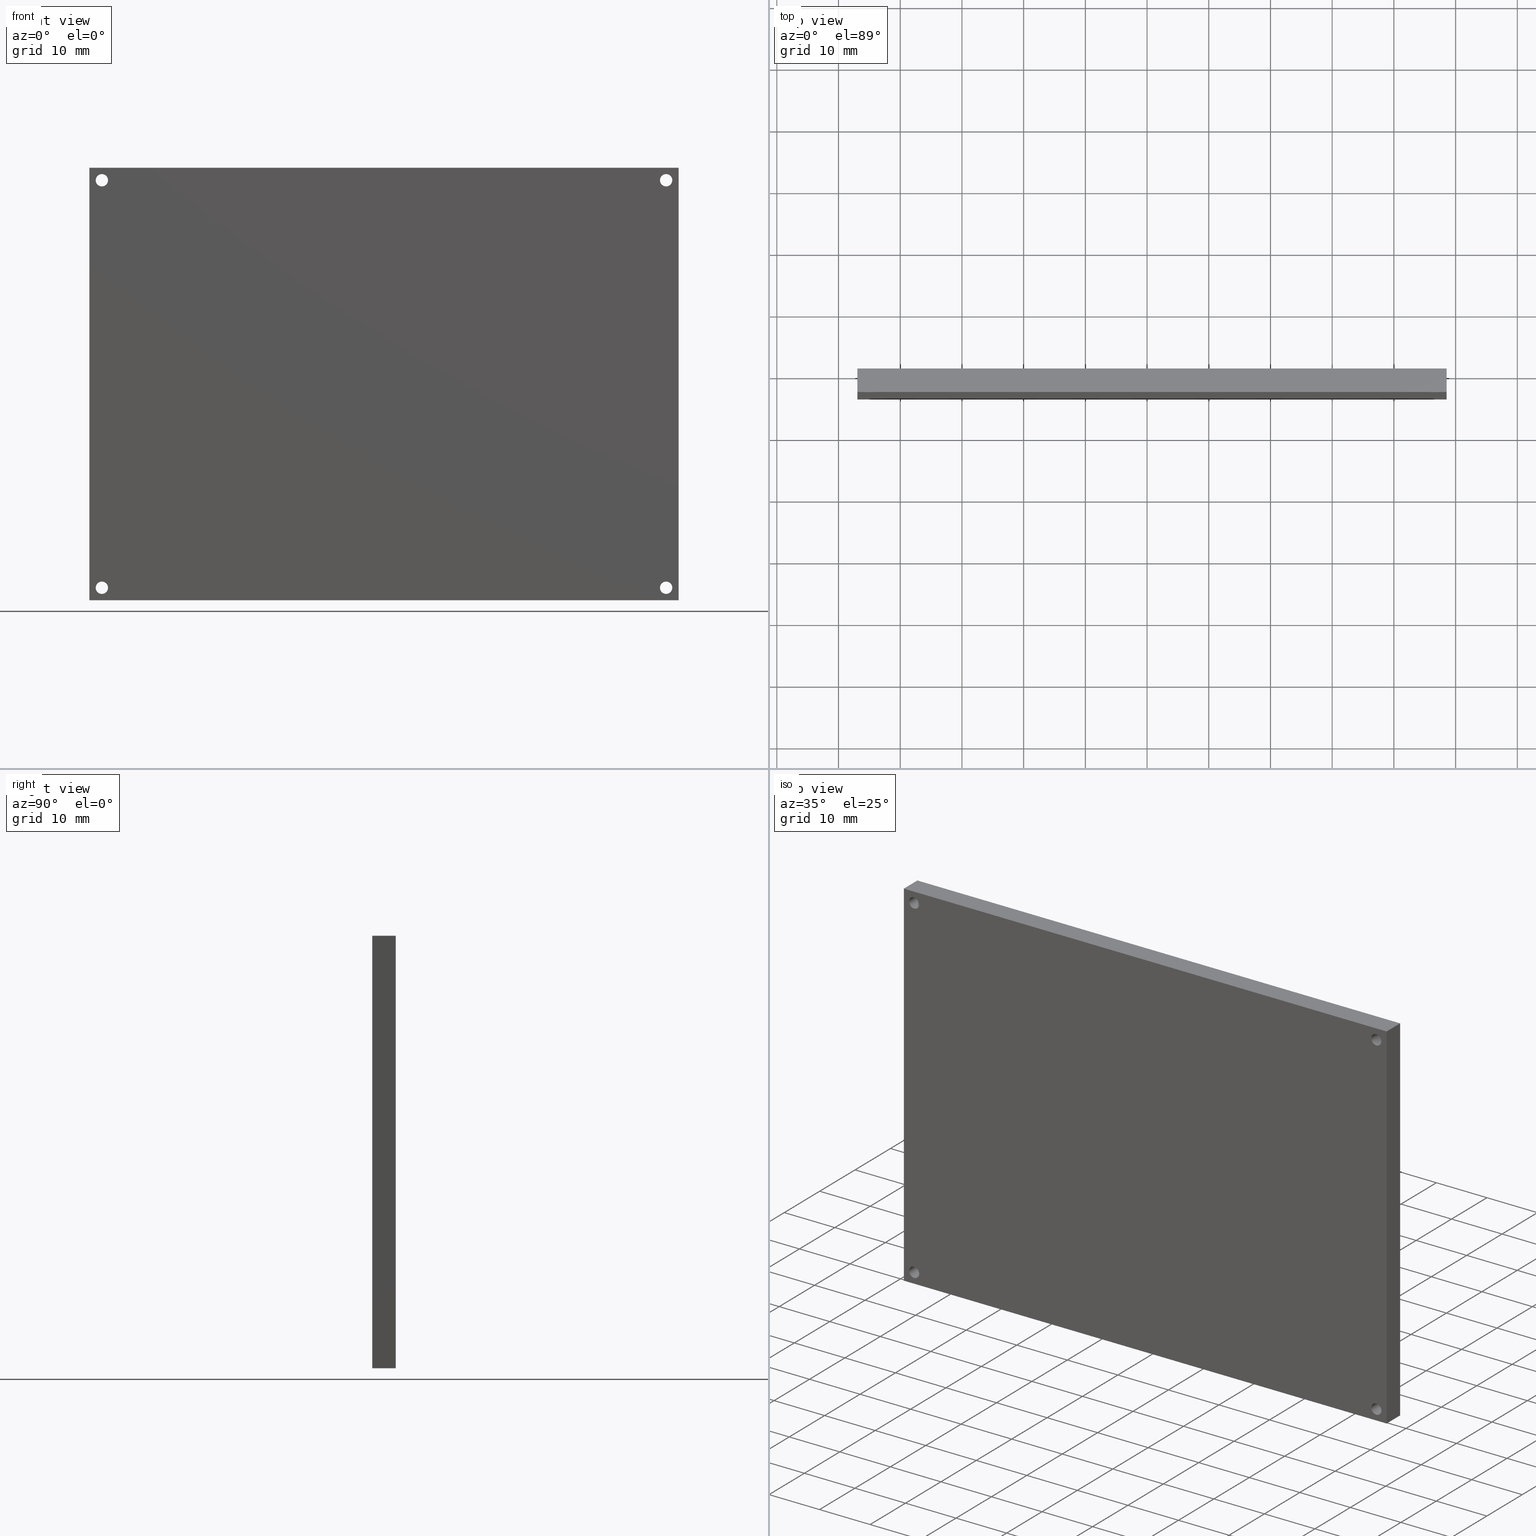
[diagram: canonical four-view strip — front | top / right | iso, engineering-drawing reading convention]
A machine part, canonical four-view strip (front | top / right | iso — engineering-drawing reading convention). The complete STEP part file that produces these views, byte-faithful:
ISO-10303-21;
HEADER;
/* Generated by software containing ST-Developer
 * from STEP Tools, Inc. (www.steptools.com) 
 */

FILE_DESCRIPTION(
/* description */ (''),
/* implementation_level */ '2;1');

FILE_NAME(
/* name */ 'Maze Cover.step',
/* time_stamp */ '2024-03-25T15:01:52-04:00',
/* author */ (''),
/* organization */ (''),
/* preprocessor_version */ 'ST-DEVELOPER v20',
/* originating_system */ 'Autodesk Translation Framework v12.20.1.177',

/* authorisation */ '');

FILE_SCHEMA (('AUTOMOTIVE_DESIGN { 1 0 10303 214 3 1 1 }'));
ENDSEC;

DATA;
#10=MECHANICAL_DESIGN_GEOMETRIC_PRESENTATION_REPRESENTATION('',(#13),#339);
#11=SHAPE_REPRESENTATION_RELATIONSHIP('SRR','None',#349,#12);
#12=ADVANCED_BREP_SHAPE_REPRESENTATION('',(#14),#338);
#13=STYLED_ITEM('',(#359),#14);
#14=MANIFOLD_SOLID_BREP('Body2',#199);
#15=FACE_BOUND('',#48,.T.);
#16=FACE_BOUND('',#49,.T.);
#17=FACE_BOUND('',#50,.T.);
#18=FACE_BOUND('',#51,.T.);
#19=FACE_BOUND('',#53,.T.);
#20=FACE_BOUND('',#54,.T.);
#21=FACE_BOUND('',#55,.T.);
#22=FACE_BOUND('',#56,.T.);
#23=PLANE('',#225);
#24=PLANE('',#226);
#25=PLANE('',#227);
#26=PLANE('',#228);
#27=PLANE('',#229);
#28=PLANE('',#230);
#29=FACE_OUTER_BOUND('',#39,.T.);
#30=FACE_OUTER_BOUND('',#40,.T.);
#31=FACE_OUTER_BOUND('',#41,.T.);
#32=FACE_OUTER_BOUND('',#42,.T.);
#33=FACE_OUTER_BOUND('',#43,.T.);
#34=FACE_OUTER_BOUND('',#44,.T.);
#35=FACE_OUTER_BOUND('',#45,.T.);
#36=FACE_OUTER_BOUND('',#46,.T.);
#37=FACE_OUTER_BOUND('',#47,.T.);
#38=FACE_OUTER_BOUND('',#52,.T.);
#39=EDGE_LOOP('',(#137,#138,#139,#140));
#40=EDGE_LOOP('',(#141,#142,#143,#144));
#41=EDGE_LOOP('',(#145,#146,#147,#148));
#42=EDGE_LOOP('',(#149,#150,#151,#152));
#43=EDGE_LOOP('',(#153,#154,#155,#156));
#44=EDGE_LOOP('',(#157,#158,#159,#160));
#45=EDGE_LOOP('',(#161,#162,#163,#164));
#46=EDGE_LOOP('',(#165,#166,#167,#168));
#47=EDGE_LOOP('',(#169,#170,#171,#172));
#48=EDGE_LOOP('',(#173));
#49=EDGE_LOOP('',(#174));
#50=EDGE_LOOP('',(#175));
#51=EDGE_LOOP('',(#176));
#52=EDGE_LOOP('',(#177,#178,#179,#180));
#53=EDGE_LOOP('',(#181));
#54=EDGE_LOOP('',(#182));
#55=EDGE_LOOP('',(#183));
#56=EDGE_LOOP('',(#184));
#57=LINE('',#290,#73);
#58=LINE('',#296,#74);
#59=LINE('',#302,#75);
#60=LINE('',#308,#76);
#61=LINE('',#313,#77);
#62=LINE('',#315,#78);
#63=LINE('',#317,#79);
#64=LINE('',#318,#80);
#65=LINE('',#321,#81);
#66=LINE('',#323,#82);
#67=LINE('',#324,#83);
#68=LINE('',#327,#84);
#69=LINE('',#329,#85);
#70=LINE('',#330,#86);
#71=LINE('',#332,#87);
#72=LINE('',#333,#88);
#73=VECTOR('',#237,0.0393700787401575);
#74=VECTOR('',#244,0.0393700787401573);
#75=VECTOR('',#251,0.0393700787401573);
#76=VECTOR('',#258,0.0393700787401575);
#77=VECTOR('',#263,0.393700787401575);
#78=VECTOR('',#264,0.393700787401575);
#79=VECTOR('',#265,0.393700787401575);
#80=VECTOR('',#266,0.393700787401575);
#81=VECTOR('',#269,0.393700787401575);
#82=VECTOR('',#270,0.393700787401575);
#83=VECTOR('',#271,0.393700787401575);
#84=VECTOR('',#274,0.393700787401575);
#85=VECTOR('',#275,0.393700787401575);
#86=VECTOR('',#276,0.393700787401575);
#87=VECTOR('',#279,0.393700787401575);
#88=VECTOR('',#280,0.393700787401575);
#89=CIRCLE('',#214,0.0393700787401575);
#90=CIRCLE('',#215,0.0393700787401575);
#91=CIRCLE('',#217,0.0393700787401573);
#92=CIRCLE('',#218,0.0393700787401573);
#93=CIRCLE('',#220,0.0393700787401573);
#94=CIRCLE('',#221,0.0393700787401573);
#95=CIRCLE('',#223,0.0393700787401575);
#96=CIRCLE('',#224,0.0393700787401575);
#97=VERTEX_POINT('',#287);
#98=VERTEX_POINT('',#289);
#99=VERTEX_POINT('',#293);
#100=VERTEX_POINT('',#295);
#101=VERTEX_POINT('',#299);
#102=VERTEX_POINT('',#301);
#103=VERTEX_POINT('',#305);
#104=VERTEX_POINT('',#307);
#105=VERTEX_POINT('',#311);
#106=VERTEX_POINT('',#312);
#107=VERTEX_POINT('',#314);
#108=VERTEX_POINT('',#316);
#109=VERTEX_POINT('',#320);
#110=VERTEX_POINT('',#322);
#111=VERTEX_POINT('',#326);
#112=VERTEX_POINT('',#328);
#113=EDGE_CURVE('',#97,#97,#89,.T.);
#114=EDGE_CURVE('',#97,#98,#57,.T.);
#115=EDGE_CURVE('',#98,#98,#90,.T.);
#116=EDGE_CURVE('',#99,#99,#91,.T.);
#117=EDGE_CURVE('',#99,#100,#58,.T.);
#118=EDGE_CURVE('',#100,#100,#92,.T.);
#119=EDGE_CURVE('',#101,#101,#93,.T.);
#120=EDGE_CURVE('',#101,#102,#59,.T.);
#121=EDGE_CURVE('',#102,#102,#94,.T.);
#122=EDGE_CURVE('',#103,#103,#95,.T.);
#123=EDGE_CURVE('',#103,#104,#60,.T.);
#124=EDGE_CURVE('',#104,#104,#96,.T.);
#125=EDGE_CURVE('',#105,#106,#61,.T.);
#126=EDGE_CURVE('',#106,#107,#62,.T.);
#127=EDGE_CURVE('',#108,#107,#63,.T.);
#128=EDGE_CURVE('',#105,#108,#64,.T.);
#129=EDGE_CURVE('',#109,#105,#65,.T.);
#130=EDGE_CURVE('',#110,#108,#66,.T.);
#131=EDGE_CURVE('',#109,#110,#67,.T.);
#132=EDGE_CURVE('',#111,#109,#68,.T.);
#133=EDGE_CURVE('',#112,#110,#69,.T.);
#134=EDGE_CURVE('',#111,#112,#70,.T.);
#135=EDGE_CURVE('',#106,#111,#71,.T.);
#136=EDGE_CURVE('',#107,#112,#72,.T.);
#137=ORIENTED_EDGE('',*,*,#113,.T.);
#138=ORIENTED_EDGE('',*,*,#114,.T.);
#139=ORIENTED_EDGE('',*,*,#115,.F.);
#140=ORIENTED_EDGE('',*,*,#114,.F.);
#141=ORIENTED_EDGE('',*,*,#116,.T.);
#142=ORIENTED_EDGE('',*,*,#117,.T.);
#143=ORIENTED_EDGE('',*,*,#118,.F.);
#144=ORIENTED_EDGE('',*,*,#117,.F.);
#145=ORIENTED_EDGE('',*,*,#119,.T.);
#146=ORIENTED_EDGE('',*,*,#120,.T.);
#147=ORIENTED_EDGE('',*,*,#121,.F.);
#148=ORIENTED_EDGE('',*,*,#120,.F.);
#149=ORIENTED_EDGE('',*,*,#122,.T.);
#150=ORIENTED_EDGE('',*,*,#123,.T.);
#151=ORIENTED_EDGE('',*,*,#124,.F.);
#152=ORIENTED_EDGE('',*,*,#123,.F.);
#153=ORIENTED_EDGE('',*,*,#125,.T.);
#154=ORIENTED_EDGE('',*,*,#126,.T.);
#155=ORIENTED_EDGE('',*,*,#127,.F.);
#156=ORIENTED_EDGE('',*,*,#128,.F.);
#157=ORIENTED_EDGE('',*,*,#129,.T.);
#158=ORIENTED_EDGE('',*,*,#128,.T.);
#159=ORIENTED_EDGE('',*,*,#130,.F.);
#160=ORIENTED_EDGE('',*,*,#131,.F.);
#161=ORIENTED_EDGE('',*,*,#132,.T.);
#162=ORIENTED_EDGE('',*,*,#131,.T.);
#163=ORIENTED_EDGE('',*,*,#133,.F.);
#164=ORIENTED_EDGE('',*,*,#134,.F.);
#165=ORIENTED_EDGE('',*,*,#135,.T.);
#166=ORIENTED_EDGE('',*,*,#134,.T.);
#167=ORIENTED_EDGE('',*,*,#136,.F.);
#168=ORIENTED_EDGE('',*,*,#126,.F.);
#169=ORIENTED_EDGE('',*,*,#136,.T.);
#170=ORIENTED_EDGE('',*,*,#133,.T.);
#171=ORIENTED_EDGE('',*,*,#130,.T.);
#172=ORIENTED_EDGE('',*,*,#127,.T.);
#173=ORIENTED_EDGE('',*,*,#124,.T.);
#174=ORIENTED_EDGE('',*,*,#121,.T.);
#175=ORIENTED_EDGE('',*,*,#118,.T.);
#176=ORIENTED_EDGE('',*,*,#115,.T.);
#177=ORIENTED_EDGE('',*,*,#135,.F.);
#178=ORIENTED_EDGE('',*,*,#125,.F.);
#179=ORIENTED_EDGE('',*,*,#129,.F.);
#180=ORIENTED_EDGE('',*,*,#132,.F.);
#181=ORIENTED_EDGE('',*,*,#122,.F.);
#182=ORIENTED_EDGE('',*,*,#119,.F.);
#183=ORIENTED_EDGE('',*,*,#116,.F.);
#184=ORIENTED_EDGE('',*,*,#113,.F.);
#185=CYLINDRICAL_SURFACE('',#213,0.0393700787401575);
#186=CYLINDRICAL_SURFACE('',#216,0.0393700787401573);
#187=CYLINDRICAL_SURFACE('',#219,0.0393700787401573);
#188=CYLINDRICAL_SURFACE('',#222,0.0393700787401575);
#189=ADVANCED_FACE('',(#29),#185,.F.);
#190=ADVANCED_FACE('',(#30),#186,.F.);
#191=ADVANCED_FACE('',(#31),#187,.F.);
#192=ADVANCED_FACE('',(#32),#188,.F.);
#193=ADVANCED_FACE('',(#33),#23,.T.);
#194=ADVANCED_FACE('',(#34),#24,.T.);
#195=ADVANCED_FACE('',(#35),#25,.T.);
#196=ADVANCED_FACE('',(#36),#26,.T.);
#197=ADVANCED_FACE('',(#37,#15,#16,#17,#18),#27,.T.);
#198=ADVANCED_FACE('',(#38,#19,#20,#21,#22),#28,.F.);
#199=CLOSED_SHELL('',(#189,#190,#191,#192,#193,#194,#195,#196,#197,#198));
#200=DERIVED_UNIT_ELEMENT(#202,1.);
#201=DERIVED_UNIT_ELEMENT(#343,-3.);
#202=(
MASS_UNIT()
NAMED_UNIT(*)
SI_UNIT(.KILO.,.GRAM.)
);
#203=DERIVED_UNIT((#200,#201));
#204=MEASURE_REPRESENTATION_ITEM('density measure',
POSITIVE_RATIO_MEASURE(7850.),#203);
#205=PROPERTY_DEFINITION_REPRESENTATION(#210,#207);
#206=PROPERTY_DEFINITION_REPRESENTATION(#211,#208);
#207=REPRESENTATION('material name',(#209),#338);
#208=REPRESENTATION('density',(#204),#338);
#209=DESCRIPTIVE_REPRESENTATION_ITEM('Steel','Steel');
#210=PROPERTY_DEFINITION('material property','material name',#351);
#211=PROPERTY_DEFINITION('material property','density of part',#351);
#212=AXIS2_PLACEMENT_3D('',#285,#231,#232);
#213=AXIS2_PLACEMENT_3D('',#286,#233,#234);
#214=AXIS2_PLACEMENT_3D('',#288,#235,#236);
#215=AXIS2_PLACEMENT_3D('',#291,#238,#239);
#216=AXIS2_PLACEMENT_3D('',#292,#240,#241);
#217=AXIS2_PLACEMENT_3D('',#294,#242,#243);
#218=AXIS2_PLACEMENT_3D('',#297,#245,#246);
#219=AXIS2_PLACEMENT_3D('',#298,#247,#248);
#220=AXIS2_PLACEMENT_3D('',#300,#249,#250);
#221=AXIS2_PLACEMENT_3D('',#303,#252,#253);
#222=AXIS2_PLACEMENT_3D('',#304,#254,#255);
#223=AXIS2_PLACEMENT_3D('',#306,#256,#257);
#224=AXIS2_PLACEMENT_3D('',#309,#259,#260);
#225=AXIS2_PLACEMENT_3D('',#310,#261,#262);
#226=AXIS2_PLACEMENT_3D('',#319,#267,#268);
#227=AXIS2_PLACEMENT_3D('',#325,#272,#273);
#228=AXIS2_PLACEMENT_3D('',#331,#277,#278);
#229=AXIS2_PLACEMENT_3D('',#334,#281,#282);
#230=AXIS2_PLACEMENT_3D('',#335,#283,#284);
#231=DIRECTION('axis',(0.,0.,1.));
#232=DIRECTION('refdir',(1.,0.,0.));
#233=DIRECTION('center_axis',(0.,1.,0.));
#234=DIRECTION('ref_axis',(-1.,0.,0.));
#235=DIRECTION('center_axis',(0.,-1.,0.));
#236=DIRECTION('ref_axis',(-1.,0.,0.));
#237=DIRECTION('',(0.,1.,0.));
#238=DIRECTION('center_axis',(0.,-1.,0.));
#239=DIRECTION('ref_axis',(-1.,0.,0.));
#240=DIRECTION('center_axis',(0.,1.,0.));
#241=DIRECTION('ref_axis',(-1.,0.,0.));
#242=DIRECTION('center_axis',(0.,-1.,0.));
#243=DIRECTION('ref_axis',(-1.,0.,0.));
#244=DIRECTION('',(0.,1.,0.));
#245=DIRECTION('center_axis',(0.,-1.,0.));
#246=DIRECTION('ref_axis',(-1.,0.,0.));
#247=DIRECTION('center_axis',(0.,1.,0.));
#248=DIRECTION('ref_axis',(-1.,0.,0.));
#249=DIRECTION('center_axis',(0.,-1.,0.));
#250=DIRECTION('ref_axis',(-1.,0.,0.));
#251=DIRECTION('',(0.,1.,0.));
#252=DIRECTION('center_axis',(0.,-1.,0.));
#253=DIRECTION('ref_axis',(-1.,0.,0.));
#254=DIRECTION('center_axis',(0.,1.,0.));
#255=DIRECTION('ref_axis',(-1.,0.,0.));
#256=DIRECTION('center_axis',(0.,-1.,0.));
#257=DIRECTION('ref_axis',(-1.,0.,0.));
#258=DIRECTION('',(0.,1.,0.));
#259=DIRECTION('center_axis',(0.,-1.,0.));
#260=DIRECTION('ref_axis',(-1.,0.,0.));
#261=DIRECTION('center_axis',(9.29990806353792E-17,0.,-1.));
#262=DIRECTION('ref_axis',(-1.,0.,-9.29990806353792E-17));
#263=DIRECTION('',(-1.,0.,-9.29990806353792E-17));
#264=DIRECTION('',(0.,1.,0.));
#265=DIRECTION('',(-1.,0.,-9.29990806353792E-17));
#266=DIRECTION('',(0.,1.,0.));
#267=DIRECTION('center_axis',(1.,0.,0.));
#268=DIRECTION('ref_axis',(0.,0.,-1.));
#269=DIRECTION('',(0.,0.,-1.));
#270=DIRECTION('',(0.,0.,-1.));
#271=DIRECTION('',(0.,1.,0.));
#272=DIRECTION('center_axis',(4.64995403176896E-17,0.,1.));
#273=DIRECTION('ref_axis',(1.,0.,-4.64995403176896E-17));
#274=DIRECTION('',(1.,0.,-4.64995403176896E-17));
#275=DIRECTION('',(1.,0.,-4.64995403176896E-17));
#276=DIRECTION('',(0.,1.,0.));
#277=DIRECTION('center_axis',(-1.,0.,-2.37551999449066E-17));
#278=DIRECTION('ref_axis',(-2.37551999449066E-17,0.,1.));
#279=DIRECTION('',(-2.37551999449066E-17,0.,1.));
#280=DIRECTION('',(-2.37551999449066E-17,0.,1.));
#281=DIRECTION('center_axis',(0.,1.,0.));
#282=DIRECTION('ref_axis',(-1.,0.,0.));
#283=DIRECTION('center_axis',(0.,1.,0.));
#284=DIRECTION('ref_axis',(-1.,0.,0.));
#285=CARTESIAN_POINT('',(0.,0.,0.));
#286=CARTESIAN_POINT('Origin',(0.20000000638286,0.26,-2.80000008936003));
#287=CARTESIAN_POINT('',(0.239370085123017,0.26,-2.80000008936003));
#288=CARTESIAN_POINT('Origin',(0.20000000638286,0.26,-2.80000008936003));
#289=CARTESIAN_POINT('',(0.239370085123017,0.41,-2.80000008936003));
#290=CARTESIAN_POINT('',(0.239370085123017,0.26,-2.80000008936003));
#291=CARTESIAN_POINT('Origin',(0.20000000638286,0.41,-2.80000008936003));
#292=CARTESIAN_POINT('Origin',(3.79999999361714,0.26,-0.20000000638286));
#293=CARTESIAN_POINT('',(3.8393700723573,0.26,-0.20000000638286));
#294=CARTESIAN_POINT('Origin',(3.79999999361714,0.26,-0.20000000638286));
#295=CARTESIAN_POINT('',(3.8393700723573,0.41,-0.20000000638286));
#296=CARTESIAN_POINT('',(3.8393700723573,0.26,-0.20000000638286));
#297=CARTESIAN_POINT('Origin',(3.79999999361714,0.41,-0.20000000638286));
#298=CARTESIAN_POINT('Origin',(3.79999999361714,0.26,-2.80000008936003));
#299=CARTESIAN_POINT('',(3.8393700723573,0.26,-2.80000008936003));
#300=CARTESIAN_POINT('Origin',(3.79999999361714,0.26,-2.80000008936003));
#301=CARTESIAN_POINT('',(3.8393700723573,0.41,-2.80000008936003));
#302=CARTESIAN_POINT('',(3.8393700723573,0.26,-2.80000008936003));
#303=CARTESIAN_POINT('Origin',(3.79999999361714,0.41,-2.80000008936003));
#304=CARTESIAN_POINT('Origin',(0.20000000638286,0.26,-0.20000000638286));
#305=CARTESIAN_POINT('',(0.239370085123017,0.26,-0.20000000638286));
#306=CARTESIAN_POINT('Origin',(0.20000000638286,0.26,-0.20000000638286));
#307=CARTESIAN_POINT('',(0.239370085123017,0.41,-0.20000000638286));
#308=CARTESIAN_POINT('',(0.239370085123017,0.26,-0.20000000638286));
#309=CARTESIAN_POINT('Origin',(0.20000000638286,0.41,-0.20000000638286));
#310=CARTESIAN_POINT('Origin',(3.88,0.26,-2.88));
#311=CARTESIAN_POINT('',(3.88,0.26,-2.88));
#312=CARTESIAN_POINT('',(0.12,0.26,-2.88));
#313=CARTESIAN_POINT('',(3.88,0.26,-2.88));
#314=CARTESIAN_POINT('',(0.12,0.41,-2.88));
#315=CARTESIAN_POINT('',(0.12,0.26,-2.88));
#316=CARTESIAN_POINT('',(3.88,0.41,-2.88));
#317=CARTESIAN_POINT('',(3.88,0.41,-2.88));
#318=CARTESIAN_POINT('',(3.88,0.26,-2.88));
#319=CARTESIAN_POINT('Origin',(3.88,0.26,-0.12));
#320=CARTESIAN_POINT('',(3.88,0.26,-0.12));
#321=CARTESIAN_POINT('',(3.88,0.26,-0.12));
#322=CARTESIAN_POINT('',(3.88,0.41,-0.12));
#323=CARTESIAN_POINT('',(3.88,0.41,-0.12));
#324=CARTESIAN_POINT('',(3.88,0.26,-0.12));
#325=CARTESIAN_POINT('Origin',(0.12,0.26,-0.12));
#326=CARTESIAN_POINT('',(0.12,0.26,-0.12));
#327=CARTESIAN_POINT('',(0.12,0.26,-0.12));
#328=CARTESIAN_POINT('',(0.12,0.41,-0.12));
#329=CARTESIAN_POINT('',(0.12,0.41,-0.12));
#330=CARTESIAN_POINT('',(0.12,0.26,-0.12));
#331=CARTESIAN_POINT('Origin',(0.12,0.26,-2.88));
#332=CARTESIAN_POINT('',(0.12,0.26,-2.88));
#333=CARTESIAN_POINT('',(0.12,0.41,-2.88));
#334=CARTESIAN_POINT('Origin',(2.,0.41,-1.5));
#335=CARTESIAN_POINT('Origin',(2.,0.26,-1.5));
#336=UNCERTAINTY_MEASURE_WITH_UNIT(LENGTH_MEASURE(0.000393700787401575),
#341,'DISTANCE_ACCURACY_VALUE',
'Maximum model space distance between geometric entities at asserted c
onnectivities');
#337=UNCERTAINTY_MEASURE_WITH_UNIT(LENGTH_MEASURE(0.000393700787401575),
#341,'DISTANCE_ACCURACY_VALUE',
'Maximum model space distance between geometric entities at asserted c
onnectivities');
#338=(
GEOMETRIC_REPRESENTATION_CONTEXT(3)
GLOBAL_UNCERTAINTY_ASSIGNED_CONTEXT((#336))
GLOBAL_UNIT_ASSIGNED_CONTEXT((#341,#345,#346))
REPRESENTATION_CONTEXT('','3D')
);
#339=(
GEOMETRIC_REPRESENTATION_CONTEXT(3)
GLOBAL_UNCERTAINTY_ASSIGNED_CONTEXT((#337))
GLOBAL_UNIT_ASSIGNED_CONTEXT((#341,#345,#346))
REPRESENTATION_CONTEXT('','3D')
);
#340=DIMENSIONAL_EXPONENTS(1.,0.,0.,0.,0.,0.,0.);
#341=(
CONVERSION_BASED_UNIT('inch',#344)
LENGTH_UNIT()
NAMED_UNIT(#340)
);
#342=(
LENGTH_UNIT()
NAMED_UNIT(*)
SI_UNIT(.MILLI.,.METRE.)
);
#343=(
LENGTH_UNIT()
NAMED_UNIT(*)
SI_UNIT($,.METRE.)
);
#344=LENGTH_MEASURE_WITH_UNIT(LENGTH_MEASURE(25.4),#342);
#345=(
NAMED_UNIT(*)
PLANE_ANGLE_UNIT()
SI_UNIT($,.RADIAN.)
);
#346=(
NAMED_UNIT(*)
SI_UNIT($,.STERADIAN.)
SOLID_ANGLE_UNIT()
);
#347=SHAPE_DEFINITION_REPRESENTATION(#348,#349);
#348=PRODUCT_DEFINITION_SHAPE('',$,#351);
#349=SHAPE_REPRESENTATION('',(#212),#338);
#350=PRODUCT_DEFINITION_CONTEXT('part definition',#355,'design');
#351=PRODUCT_DEFINITION('(Unsaved)','(Unsaved)',#352,#350);
#352=PRODUCT_DEFINITION_FORMATION('',$,#357);
#353=PRODUCT_RELATED_PRODUCT_CATEGORY('(Unsaved)','(Unsaved)',(#357));
#354=APPLICATION_PROTOCOL_DEFINITION('international standard',
'automotive_design',2009,#355);
#355=APPLICATION_CONTEXT(
'Core Data for Automotive Mechanical Design Process');
#356=PRODUCT_CONTEXT('part definition',#355,'mechanical');
#357=PRODUCT('(Unsaved)','(Unsaved)',$,(#356));
#358=PRESENTATION_STYLE_ASSIGNMENT((#360));
#359=PRESENTATION_STYLE_ASSIGNMENT((#361));
#360=SURFACE_STYLE_USAGE(.BOTH.,#362);
#361=SURFACE_STYLE_USAGE(.BOTH.,#363);
#362=SURFACE_SIDE_STYLE('',(#364));
#363=SURFACE_SIDE_STYLE('',(#365));
#364=SURFACE_STYLE_FILL_AREA(#366);
#365=SURFACE_STYLE_FILL_AREA(#367);
#366=FILL_AREA_STYLE('Steel - Satin',(#368));
#367=FILL_AREA_STYLE('Opaque(108,196,218)',(#369));
#368=FILL_AREA_STYLE_COLOUR('Steel - Satin',#370);
#369=FILL_AREA_STYLE_COLOUR('Opaque(108,196,218)',#371);
#370=COLOUR_RGB('Steel - Satin',0.627450980392157,0.627450980392157,0.627450980392157);
#371=COLOUR_RGB('Opaque(108,196,218)',0.423529411764706,0.768627450980392,
0.854901960784314);
ENDSEC;
END-ISO-10303-21;
